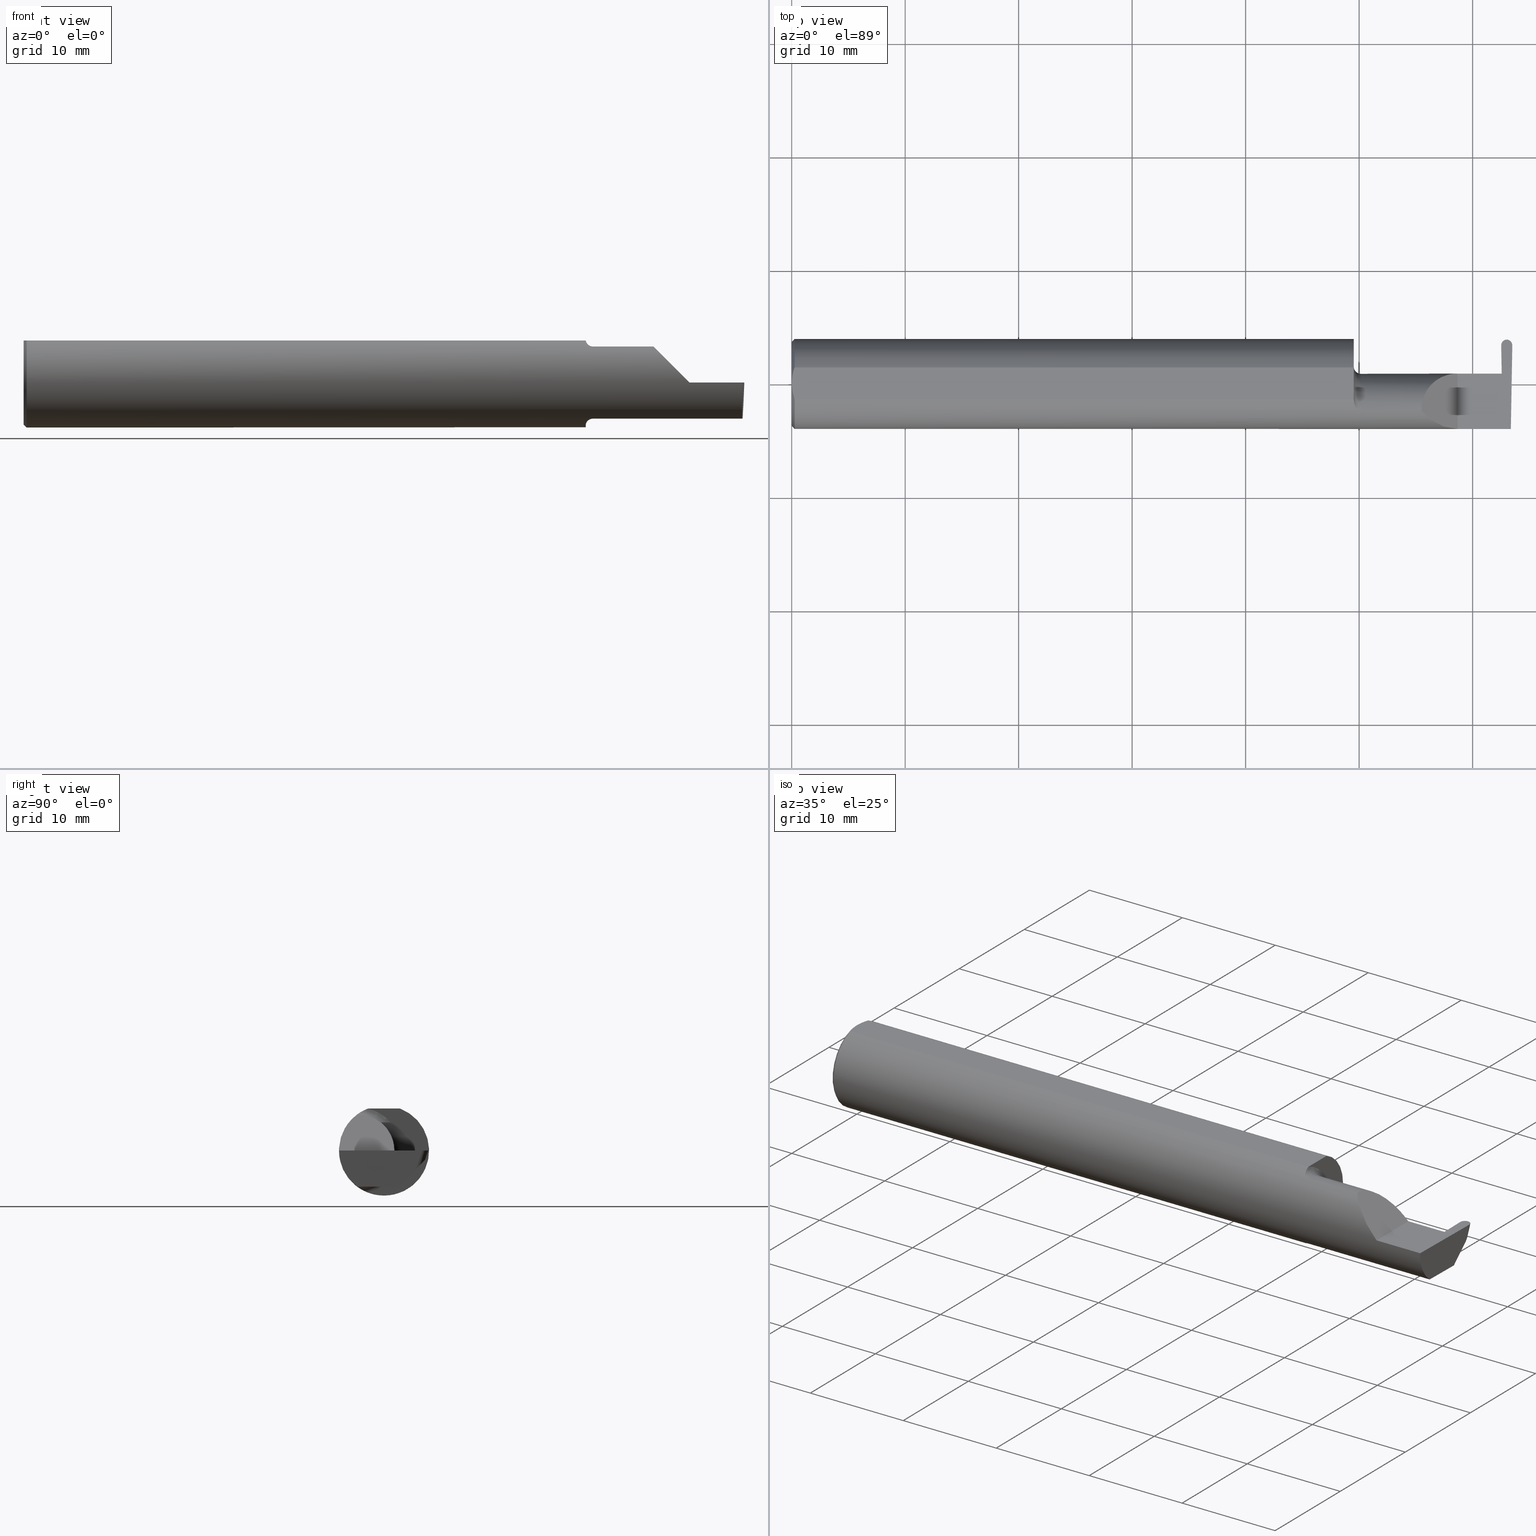
[diagram: canonical four-view strip — front | top / right | iso, engineering-drawing reading convention]
A machine part, canonical four-view strip (front | top / right | iso — engineering-drawing reading convention). The complete STEP part file that produces these views, byte-faithful:
ISO-10303-21;
HEADER;
FILE_DESCRIPTION (( 'STEP AP203' ),
    '1' );
FILE_NAME ('222038-GFR038-8.STEP',
    '2024-06-17T21:58:30',
    ( '' ),
    ( '' ),
    'SwSTEP 2.0',
    'SolidWorks 2022',
    '' );
FILE_SCHEMA (( 'CONFIG_CONTROL_DESIGN' ));
ENDSEC;

DATA;
#1 = DIRECTION ( 'NONE',  ( 0.7071067811865474617, 0.000000000000000000, -0.7071067811865474617 ) ) ;
#2 = CARTESIAN_POINT ( 'NONE',  ( 2.499981158297549744, 0.1333832200032812054, 0.000000000000000000 ) ) ;
#3 = LOCAL_TIME ( 14, 58, 30.00000000000000000, #681 ) ;
#4 = ORIENTED_EDGE ( 'NONE', *, *, #497, .F. ) ;
#5 = CARTESIAN_POINT ( 'NONE',  ( 2.480730819999999781, 0.1431774318487742947, -0.03104841213924604965 ) ) ;
#6 = DIRECTION ( 'NONE',  ( 1.000000000000000000, 3.338285537973413126E-17, 0.000000000000000000 ) ) ;
#7 = EDGE_LOOP ( 'NONE', ( #551, #415, #269, #609, #233, #183, #317, #541, #409, #169, #92, #469, #650 ) ) ;
#8 = DIRECTION ( 'NONE',  ( 0.000000000000000000, -1.000000000000000000, 0.000000000000000000 ) ) ;
#9 = DIRECTION ( 'NONE',  ( 0.000000000000000000, -0.03489949670250104552, -0.9993908270190957621 ) ) ;
#10 = ORIENTED_EDGE ( 'NONE', *, *, #641, .T. ) ;
#11 = LINE ( 'NONE', #383, #592 ) ;
#12 = PLANE ( 'NONE',  #173 ) ;
#13 = EDGE_LOOP ( 'NONE', ( #525, #152, #220, #387, #84, #100 ) ) ;
#14 = EDGE_CURVE ( 'NONE', #554, #55, #150, .T. ) ;
#15 = DIRECTION ( 'NONE',  ( -1.000000000000000000, -0.000000000000000000, -0.000000000000000000 ) ) ;
#16 = EDGE_CURVE ( 'NONE', #434, #116, #212, .T. ) ;
#17 = ORIENTED_EDGE ( 'NONE', *, *, #149, .T. ) ;
#18 = VECTOR ( 'NONE', #250, 39.37007874015748143 ) ;
#19 = CARTESIAN_POINT ( 'NONE',  ( 2.814752029381861309, 0.1560999999999999888, 0.1460999999999998689 ) ) ;
#20 = LENGTH_MEASURE_WITH_UNIT ( LENGTH_MEASURE( 0.02539999999999999897 ), #27 );
#21 = DIRECTION ( 'NONE',  ( -0.03701368837992380367, 0.7066222423871549863, 0.7066222423871629799 ) ) ;
#22 = LOCAL_TIME ( 14, 58, 30.00000000000000000, #32 ) ;
#23 = ADVANCED_FACE ( 'NONE', ( #380 ), #589, .F. ) ;
#24 = DIRECTION ( 'NONE',  ( 1.000000000000000000, 0.000000000000000000, 0.000000000000000000 ) ) ;
#25 = DIRECTION ( 'NONE',  ( -1.000000000000000000, -3.338285537973413126E-17, -0.000000000000000000 ) ) ;
#26 = B_SPLINE_CURVE_WITH_KNOTS ( 'NONE', 3,
 ( #552, #340, #435, #168, #234, #439 ),
 .UNSPECIFIED., .F., .F.,
 ( 4, 2, 4 ),
 ( 0.001497827971916939694, 0.002206109860466201264, 0.002914391749015463051 ),
 .UNSPECIFIED. ) ;
#27 =( LENGTH_UNIT ( ) NAMED_UNIT ( * ) SI_UNIT ( $, .METRE. ) );
#28 = AXIS2_PLACEMENT_3D ( 'NONE', #557, #141, #620 ) ;
#29 = FACE_OUTER_BOUND ( 'NONE', #390, .T. ) ;
#30 = VECTOR ( 'NONE', #376, 39.37007874015747433 ) ;
#31 = ORIENTED_EDGE ( 'NONE', *, *, #318, .T. ) ;
#32 = COORDINATED_UNIVERSAL_TIME_OFFSET ( 8, 0, .BEHIND. ) ;
#33 = DIRECTION ( 'NONE',  ( 0.03867711768363010783, 0.3253245514560481610, 0.9448111011136606230 ) ) ;
#34 = ORIENTED_EDGE ( 'NONE', *, *, #318, .F. ) ;
#35 = PERSON ( 'UNSPECIFIED', 'UNSPECIFIED', 'UNSPECIFIED', ('UNSPECIFIED'), ('UNSPECIFIED'), ('UNSPECIFIED') ) ;
#36 = PERSON_AND_ORGANIZATION_ROLE ( 'classification_officer' ) ;
#37 = DIRECTION ( 'NONE',  ( -1.000000000000000000, -0.000000000000000000, -0.000000000000000000 ) ) ;
#38 = ORIENTED_EDGE ( 'NONE', *, *, #516, .F. ) ;
#39 = APPROVAL_STATUS ( 'not_yet_approved' ) ;
#40 = DIRECTION ( 'NONE',  ( 0.000000000000000000, -0.3255681544571574215, -0.9455185755993165131 ) ) ;
#41 = AXIS2_PLACEMENT_3D ( 'NONE', #562, #195, #354 ) ;
#42 = ORIENTED_EDGE ( 'NONE', *, *, #466, .F. ) ;
#43 = AXIS2_PLACEMENT_3D ( 'NONE', #237, #400, #302 ) ;
#44 = APPROVAL_DATE_TIME ( #89, #438 ) ;
#45 = DIRECTION ( 'NONE',  ( 1.000000000000000000, -0.000000000000000000, -0.000000000000000000 ) ) ;
#46 = ORIENTED_EDGE ( 'NONE', *, *, #72, .T. ) ;
#47 = PRODUCT ( '222038-GFR038-8', '222038-GFR038-8', '', ( #315 ) ) ;
#48 = EDGE_CURVE ( 'NONE', #653, #535, #258, .T. ) ;
#49 = EDGE_CURVE ( 'NONE', #323, #434, #563, .T. ) ;
#50 = DIRECTION ( 'NONE',  ( -1.000000000000000000, -0.000000000000000000, -0.000000000000000000 ) ) ;
#51 = ORIENTED_EDGE ( 'NONE', *, *, #343, .T. ) ;
#52 =( BOUNDED_CURVE ( )  B_SPLINE_CURVE ( 3, ( #372, #584, #316, #361 ),
 .UNSPECIFIED., .F., .F. ) 
 B_SPLINE_CURVE_WITH_KNOTS ( ( 4, 4 ),
 ( 3.176499238629678867, 4.677482395344782162 ),
 .UNSPECIFIED. ) 
 CURVE ( )  GEOMETRIC_REPRESENTATION_ITEM ( )  RATIONAL_B_SPLINE_CURVE ( ( 1.000000000000000000, 0.8209024677461181918, 0.8209024677461181918, 1.000000000000000000 ) ) 
 REPRESENTATION_ITEM ( '' )  );
#53 = LINE ( 'NONE', #686, #30 ) ;
#54 = VERTEX_POINT ( 'NONE', #330 ) ;
#55 = VERTEX_POINT ( 'NONE', #277 ) ;
#56 = EDGE_CURVE ( 'NONE', #126, #514, #498, .T. ) ;
#57 = CARTESIAN_POINT ( 'NONE',  ( 2.461464574789446136, 0.1342945264389270033, 0.000000000000000000 ) ) ;
#58 = FACE_OUTER_BOUND ( 'NONE', #587, .T. ) ;
#59 = ORIENTED_EDGE ( 'NONE', *, *, #199, .F. ) ;
#60 = CARTESIAN_POINT ( 'NONE',  ( 2.480730819999999781, 0.1462124952691014335, -0.02229539791963374221 ) ) ;
#61 = CARTESIAN_POINT ( 'NONE',  ( 2.491731938133923130, -0.08909999999999977660, -0.1250000000000000278 ) ) ;
#62 = ORIENTED_EDGE ( 'NONE', *, *, #202, .T. ) ;
#63 = CARTESIAN_POINT ( 'NONE',  ( 2.455817866257967275, 0.03559550628247789422, -0.008719559218018122643 ) ) ;
#64 = CARTESIAN_POINT ( 'NONE',  ( 2.463182057637018030, 0.03590000000000000135, 0.000000000000000000 ) ) ;
#65 = APPROVAL ( #576, 'UNSPECIFIED' ) ;
#66 = ORIENTED_EDGE ( 'NONE', *, *, #14, .T. ) ;
#67 = AXIS2_PLACEMENT_3D ( 'NONE', #159, #417, #40 ) ;
#68 = CARTESIAN_POINT ( 'NONE',  ( 2.461480481702449818, 0.1333832200032812332, 0.000000000000000000 ) ) ;
#69 = CARTESIAN_POINT ( 'NONE',  ( 2.480730819999999781, 0.1431774318487742947, -0.03104841213924604965 ) ) ;
#70 = EDGE_CURVE ( 'NONE', #175, #699, #392, .T. ) ;
#71 = ORIENTED_EDGE ( 'NONE', *, *, #352, .T. ) ;
#72 = EDGE_CURVE ( 'NONE', #356, #175, #515, .T. ) ;
#73 = CARTESIAN_POINT ( 'NONE',  ( 2.497431183685123735, 0.1119346375676058408, -0.06229120642041485051 ) ) ;
#74 = ORIENTED_EDGE ( 'NONE', *, *, #695, .F. ) ;
#75 = FACE_OUTER_BOUND ( 'NONE', #178, .T. ) ;
#76 = DIRECTION ( 'NONE',  ( 1.000000000000000000, 0.000000000000000000, 0.000000000000000000 ) ) ;
#77 = CARTESIAN_POINT ( 'NONE',  ( -6.265209250606362652E-17, 0.009396510398413125686, 0.1460999999999998689 ) ) ;
#78 = AXIS2_PLACEMENT_3D ( 'NONE', #391, #388, #443 ) ;
#79 = EDGE_CURVE ( 'NONE', #489, #402, #226, .T. ) ;
#80 = PLANE ( 'NONE',  #470 ) ;
#81 = DIRECTION ( 'NONE',  ( 0.000000000000000000, 0.000000000000000000, 1.000000000000000000 ) ) ;
#82 = CARTESIAN_POINT ( 'NONE',  ( 2.477214178502805453, 0.1044344632894257108, -0.08437736749050758767 ) ) ;
#83 = CARTESIAN_POINT ( 'NONE',  ( 1.949999999999999956, -0.05502817059483720852, 0.1460791239054557156 ) ) ;
#84 = ORIENTED_EDGE ( 'NONE', *, *, #695, .T. ) ;
#85 = CYLINDRICAL_SURFACE ( 'NONE', #616, 0.01930000000000000118 ) ;
#86 = VECTOR ( 'NONE', #50, 39.37007874015748143 ) ;
#87 = CARTESIAN_POINT ( 'NONE',  ( 2.456122359975489111, 0.03589999999999995278, 0.000000000000000000 ) ) ;
#88 = ORIENTED_EDGE ( 'NONE', *, *, #149, .F. ) ;
#89 = DATE_AND_TIME ( #214, #22 ) ;
#90 = CARTESIAN_POINT ( 'NONE',  ( 0.000000000000000000, 0.05497272050753933964, 0.1460999999999998689 ) ) ;
#91 = EDGE_CURVE ( 'NONE', #158, #331, #114, .T. ) ;
#92 = ORIENTED_EDGE ( 'NONE', *, *, #321, .F. ) ;
#93 = SHAPE_DEFINITION_REPRESENTATION ( #382, #135 ) ;
#94 = CARTESIAN_POINT ( 'NONE',  ( 2.493178846255211134, -0.1561000000000000165, -0.05008759057876781967 ) ) ;
#95 = CARTESIAN_POINT ( 'NONE',  ( 1.974999999999999867, -0.09360841750841737696, -0.1249186702281520900 ) ) ;
#96 = COORDINATED_UNIVERSAL_TIME_OFFSET ( 8, 0, .BEHIND. ) ;
#97 = CARTESIAN_POINT ( 'NONE',  ( 2.480730819999999781, 0.1431774318487742947, -0.03104841213924604965 ) ) ;
#98 = EDGE_CURVE ( 'NONE', #54, #146, #192, .T. ) ;
#99 = CLOSED_SHELL ( 'NONE', ( #271, #101, #674, #256, #221, #181, #134, #127, #209, #475, #643, #627, #452, #305, #297, #231, #23, #663, #671 ) ) ;
#100 = ORIENTED_EDGE ( 'NONE', *, *, #516, .T. ) ;
#101 = ADVANCED_FACE ( 'NONE', ( #117 ), #12, .F. ) ;
#102 = PERSON_AND_ORGANIZATION_ROLE ( 'design_supplier' ) ;
#103 = CARTESIAN_POINT ( 'NONE',  ( 2.499997065210553426, 0.1342945264389270033, 0.000000000000000000 ) ) ;
#104 = CARTESIAN_POINT ( 'NONE',  ( 2.469175924963806334, 0.1539000000000003143, 1.422725471777793932E-18 ) ) ;
#105 = ORIENTED_EDGE ( 'NONE', *, *, #691, .T. ) ;
#106 = DATE_AND_TIME ( #363, #332 ) ;
#107 = LINE ( 'NONE', #697, #371 ) ;
#108 = LOCAL_TIME ( 14, 58, 30.00000000000000000, #414 ) ;
#109 = VERTEX_POINT ( 'NONE', #337 ) ;
#110 = EDGE_LOOP ( 'NONE', ( #494, #569, #342, #324, #200, #304, #359, #465, #698, #431 ) ) ;
#111 = DIRECTION ( 'NONE',  ( -1.000000000000000000, -3.338285537973413126E-17, -0.000000000000000000 ) ) ;
#112 = CARTESIAN_POINT ( 'NONE',  ( 3.749399456654646757E-32, -0.1560999999999999333, 3.061616997868383634E-16 ) ) ;
#113 = VECTOR ( 'NONE', #180, 39.37007874015748143 ) ;
#114 =( BOUNDED_CURVE ( )  B_SPLINE_CURVE ( 3, ( #386, #652, #597, #280 ),
 .UNSPECIFIED., .F., .F. ) 
 B_SPLINE_CURVE_WITH_KNOTS ( ( 4, 4 ),
 ( 1.677524580234104778, 3.253450286950880344 ),
 .UNSPECIFIED. ) 
 CURVE ( )  GEOMETRIC_REPRESENTATION_ITEM ( )  RATIONAL_B_SPLINE_CURVE ( ( 1.000000000000000000, 0.8035272986452582922, 0.8035272986452582922, 1.000000000000000000 ) ) 
 REPRESENTATION_ITEM ( '' )  );
#115 = TOROIDAL_SURFACE ( 'NONE', #506, 0.1499999999999999944, 0.02499999999999994241 ) ;
#116 = VERTEX_POINT ( 'NONE', #545 ) ;
#117 = FACE_OUTER_BOUND ( 'NONE', #683, .T. ) ;
#118 = ORIENTED_EDGE ( 'NONE', *, *, #567, .F. ) ;
#119 = DIRECTION ( 'NONE',  ( 1.000000000000000000, 0.000000000000000000, -0.000000000000000000 ) ) ;
#120 = CC_DESIGN_PERSON_AND_ORGANIZATION_ASSIGNMENT ( #628, #102, ( #430 ) ) ;
#121 = AXIS2_PLACEMENT_3D ( 'NONE', #617, #142, #353 ) ;
#122 = DIRECTION ( 'NONE',  ( 0.000000000000000000, 0.000000000000000000, 1.000000000000000000 ) ) ;
#123 = DIRECTION ( 'NONE',  ( 0.000000000000000000, 0.000000000000000000, -1.000000000000000000 ) ) ;
#124 = AXIS2_PLACEMENT_3D ( 'NONE', #307, #154, #531 ) ;
#125 = EDGE_CURVE ( 'NONE', #640, #170, #550, .T. ) ;
#126 = VERTEX_POINT ( 'NONE', #393 ) ;
#127 = ADVANCED_FACE ( 'NONE', ( #58 ), #648, .F. ) ;
#128 = CARTESIAN_POINT ( 'NONE',  ( 2.480730819999999337, 0.1522624721910675605, -0.004755726075198207087 ) ) ;
#129 = CARTESIAN_POINT ( 'NONE',  ( 1.956968222952011338, -0.08292257577194368789, 0.1323215906886382742 ) ) ;
#130 = ORIENTED_EDGE ( 'NONE', *, *, #56, .T. ) ;
#131 = CARTESIAN_POINT ( 'NONE',  ( 0.000000000000000000, 0.000000000000000000, 0.000000000000000000 ) ) ;
#132 = LINE ( 'NONE', #558, #649 ) ;
#133 = APPROVAL_PERSON_ORGANIZATION ( #153, #664, #206 ) ;
#134 = ADVANCED_FACE ( 'NONE', ( #553 ), #186, .T. ) ;
#135 = ADVANCED_BREP_SHAPE_REPRESENTATION ( '222038-GFR038-8', ( #540, #121 ), #491 ) ;
#136 = DIRECTION ( 'NONE',  ( -1.000000000000000000, 0.000000000000000000, 1.224646799147353947E-16 ) ) ;
#137 = VECTOR ( 'NONE', #510, 39.37007874015748143 ) ;
#138 =( BOUNDED_CURVE ( )  B_SPLINE_CURVE ( 3, ( #639, #262, #255, #97 ),
 .UNSPECIFIED., .F., .F. ) 
 B_SPLINE_CURVE_WITH_KNOTS ( ( 4, 4 ),
 ( 4.726121454046340986, 6.246271046347061429 ),
 .UNSPECIFIED. ) 
 CURVE ( )  GEOMETRIC_REPRESENTATION_ITEM ( )  RATIONAL_B_SPLINE_CURVE ( ( 1.000000000000000000, 0.8165229866942824710, 0.8165229866942824710, 1.000000000000000000 ) ) 
 REPRESENTATION_ITEM ( '' )  );
#139 = DIRECTION ( 'NONE',  ( 0.000000000000000000, 0.9455185755993165131, -0.3255681544571574215 ) ) ;
#140 = VECTOR ( 'NONE', #603, 39.37007874015748143 ) ;
#141 = DIRECTION ( 'NONE',  ( -0.7071067811865436870, 0.000000000000000000, -0.7071067811865513475 ) ) ;
#142 = DIRECTION ( 'NONE',  ( 0.000000000000000000, 0.000000000000000000, 1.000000000000000000 ) ) ;
#143 = CARTESIAN_POINT ( 'NONE',  ( 1.949999999999999956, -0.08910000000000002640, 0.000000000000000000 ) ) ;
#144 = ORIENTED_EDGE ( 'NONE', *, *, #270, .T. ) ;
#145 = DIRECTION ( 'NONE',  ( -1.000000000000000000, -3.338285537973413126E-17, -0.000000000000000000 ) ) ;
#146 = VERTEX_POINT ( 'NONE', #73 ) ;
#147 = EDGE_CURVE ( 'NONE', #485, #585, #260, .T. ) ;
#148 = PRODUCT_RELATED_PRODUCT_CATEGORY ( 'detail', '', ( #47 ) ) ;
#149 = EDGE_CURVE ( 'NONE', #621, #653, #484, .T. ) ;
#150 = B_SPLINE_CURVE_WITH_KNOTS ( 'NONE', 3,
 ( #95, #575, #311, #479, #687, #473, #477, #210, #690, #369 ),
 .UNSPECIFIED., .F., .F.,
 ( 4, 2, 2, 2, 4 ),
 ( 1.958690481381664333E-07, 0.0003511029445248158368, 0.0007020100200014934991, 0.001052917095478171161, 0.001403824170954848715 ),
 .UNSPECIFIED. ) ;
#151 = CARTESIAN_POINT ( 'NONE',  ( 2.491656083944432165, -0.09360841750841739084, -0.1249186702281520622 ) ) ;
#152 = ORIENTED_EDGE ( 'NONE', *, *, #464, .T. ) ;
#153 = PERSON_AND_ORGANIZATION ( #35, #534 ) ;
#154 = DIRECTION ( 'NONE',  ( 0.000000000000000000, -0.7071067811865515695, 0.7071067811865434649 ) ) ;
#155 = ORIENTED_EDGE ( 'NONE', *, *, #504, .F. ) ;
#156 = COORDINATED_UNIVERSAL_TIME_OFFSET ( 8, 0, .BEHIND. ) ;
#157 = CARTESIAN_POINT ( 'NONE',  ( 2.491656083944432165, -0.09360841750841739084, -0.1249186702281520622 ) ) ;
#158 = VERTEX_POINT ( 'NONE', #2 ) ;
#159 = CARTESIAN_POINT ( 'NONE',  ( -3.937007874019685528E-05, 0.1539000000000000090, 0.000000000000000000 ) ) ;
#160 = AXIS2_PLACEMENT_3D ( 'NONE', #286, #15, #447 ) ;
#161 = VERTEX_POINT ( 'NONE', #346 ) ;
#162 = CIRCLE ( 'NONE', #424, 0.1560999999999999888 ) ;
#163 = EDGE_LOOP ( 'NONE', ( #42, #62, #644, #421, #251, #595 ) ) ;
#164 = APPROVAL_ROLE ( '' ) ;
#165 = CARTESIAN_POINT ( 'NONE',  ( 2.491731938133923130, -0.08909999999999977660, -0.1250000000000000278 ) ) ;
#166 = ORIENTED_EDGE ( 'NONE', *, *, #555, .T. ) ;
#167 = EDGE_LOOP ( 'NONE', ( #591, #17, #399 ) ) ;
#168 = CARTESIAN_POINT ( 'NONE',  ( 0.0009113193687670144904, -0.01867274705588957071, 0.1460999999999998411 ) ) ;
#169 = ORIENTED_EDGE ( 'NONE', *, *, #693, .T. ) ;
#170 = VERTEX_POINT ( 'NONE', #87 ) ;
#171 = CARTESIAN_POINT ( 'NONE',  ( 2.310000000000000053, -0.1560999999999999888, 2.326828918379970872E-17 ) ) ;
#172 = CARTESIAN_POINT ( 'NONE',  ( 2.491680411974855680, -0.09210618219364760662, -0.1249728871357008442 ) ) ;
#173 = AXIS2_PLACEMENT_3D ( 'NONE', #64, #659, #9 ) ;
#174 = CIRCLE ( 'NONE', #281, 0.1250000000000000833 ) ;
#175 = VERTEX_POINT ( 'NONE', #83 ) ;
#176 = CARTESIAN_POINT ( 'NONE',  ( 1.974999999999999867, -0.09360841750841737696, -0.1249186702281520900 ) ) ;
#177 = CARTESIAN_POINT ( 'NONE',  ( 2.461480481702449818, 0.1333832200032812332, 0.000000000000000000 ) ) ;
#178 = EDGE_LOOP ( 'NONE', ( #418, #273, #46, #678 ) ) ;
#179 = DIRECTION ( 'NONE',  ( -0.01745240643727553193, 0.9998476951563912696, -0.000000000000000000 ) ) ;
#180 = DIRECTION ( 'NONE',  ( 1.000000000000000000, 3.338285537973413126E-17, 0.000000000000000000 ) ) ;
#181 = ADVANCED_FACE ( 'NONE', ( #29 ), #80, .T. ) ;
#182 = EDGE_CURVE ( 'NONE', #514, #602, #296, .T. ) ;
#183 = ORIENTED_EDGE ( 'NONE', *, *, #70, .F. ) ;
#184 = CARTESIAN_POINT ( 'NONE',  ( 1.949999999999999956, 0.000000000000000000, 0.000000000000000000 ) ) ;
#185 = CARTESIAN_POINT ( 'NONE',  ( 2.491656083944432165, -0.09360841750841739084, -0.1249186702281520622 ) ) ;
#186 = CONICAL_SURFACE ( 'NONE', #301, 0.1460999999999998411, 0.7853981633974482790 ) ;
#187 = VERTEX_POINT ( 'NONE', #288 ) ;
#188 = CARTESIAN_POINT ( 'NONE',  ( 0.006876379561362894709, 0.04610291843171884091, 0.1460999999999998689 ) ) ;
#189 = CARTESIAN_POINT ( 'NONE',  ( 2.498348488981012139, 0.1294467622302619136, -0.04477908175775856953 ) ) ;
#190 = EDGE_CURVE ( 'NONE', #161, #434, #505, .T. ) ;
#191 = ORIENTED_EDGE ( 'NONE', *, *, #98, .F. ) ;
#192 =( BOUNDED_CURVE ( )  B_SPLINE_CURVE ( 3, ( #69, #341, #189, #539 ),
 .UNSPECIFIED., .F., .F. ) 
 B_SPLINE_CURVE_WITH_KNOTS ( ( 4, 4 ),
 ( 3.178506914422260632, 4.698656506723038362 ),
 .UNSPECIFIED. ) 
 CURVE ( )  GEOMETRIC_REPRESENTATION_ITEM ( )  RATIONAL_B_SPLINE_CURVE ( ( 1.000000000000000000, 0.8165229866942693704, 0.8165229866942693704, 1.000000000000000000 ) ) 
 REPRESENTATION_ITEM ( '' )  );
#193 = CYLINDRICAL_SURFACE ( 'NONE', #471, 0.1560999999999999888 ) ;
#194 = DIRECTION ( 'NONE',  ( -1.000000000000000000, -0.000000000000000000, -0.000000000000000000 ) ) ;
#195 = DIRECTION ( 'NONE',  ( -0.9992386149554827179, 0.01744177490282277851, 0.03489949670250104552 ) ) ;
#196 = CIRCLE ( 'NONE', #675, 0.1560999999999999888 ) ;
#197 = FACE_OUTER_BOUND ( 'NONE', #13, .T. ) ;
#198 = PLANE ( 'NONE',  #41 ) ;
#199 = EDGE_CURVE ( 'NONE', #175, #55, #312, .T. ) ;
#200 = ORIENTED_EDGE ( 'NONE', *, *, #125, .T. ) ;
#201 = EDGE_CURVE ( 'NONE', #240, #287, #508, .T. ) ;
#202 = EDGE_CURVE ( 'NONE', #146, #158, #406, .T. ) ;
#203 = CC_DESIGN_SECURITY_CLASSIFICATION ( #366, ( #430 ) ) ;
#204 = CARTESIAN_POINT ( 'NONE',  ( 1.974999999999999867, -0.08910000000000002640, 0.000000000000000000 ) ) ;
#205 = VERTEX_POINT ( 'NONE', #294 ) ;
#206 = APPROVAL_ROLE ( '' ) ;
#207 = FACE_OUTER_BOUND ( 'NONE', #566, .T. ) ;
#208 = ORIENTED_EDGE ( 'NONE', *, *, #666, .F. ) ;
#209 = ADVANCED_FACE ( 'NONE', ( #244 ), #115, .F. ) ;
#210 = CARTESIAN_POINT ( 'NONE',  ( 1.950382848617946419, -0.06353102748571687330, -0.1426585117573466732 ) ) ;
#211 = CARTESIAN_POINT ( 'NONE',  ( 2.480925502065933319, 0.1539000000000000090, 0.000000000000000000 ) ) ;
#212 = LINE ( 'NONE', #633, #626 ) ;
#213 = ORIENTED_EDGE ( 'NONE', *, *, #555, .F. ) ;
#214 = CALENDAR_DATE ( 2024, 17, 6 ) ;
#215 = CARTESIAN_POINT ( 'NONE',  ( 0.01000000000000013205, 0.000000000000000000, -0.1560999999999999888 ) ) ;
#216 = VECTOR ( 'NONE', #577, 39.37007874015748143 ) ;
#217 = CARTESIAN_POINT ( 'NONE',  ( 2.468985697877362551, -2.435358991439782628, -0.07721978725935170484 ) ) ;
#218 = APPLICATION_CONTEXT ( 'configuration controlled 3d designs of mechanical parts and assemblies' ) ;
#219 = CARTESIAN_POINT ( 'NONE',  ( 2.455919364163807739, 0.03569700418831857347, -0.005813039478678751031 ) ) ;
#220 = ORIENTED_EDGE ( 'NONE', *, *, #182, .F. ) ;
#221 = ADVANCED_FACE ( 'NONE', ( #358 ), #303, .F. ) ;
#222 = DIRECTION ( 'NONE',  ( 0.000000000000000000, 1.000000000000000000, 0.000000000000000000 ) ) ;
#223 = CARTESIAN_POINT ( 'NONE',  ( 1.965961110143898516, -0.09166971356555039807, 0.1263901893006928734 ) ) ;
#224 = ORIENTED_EDGE ( 'NONE', *, *, #547, .F. ) ;
#225 = CARTESIAN_POINT ( 'NONE',  ( 2.215117332916549220, -0.1336908980339253650, 0.09488266708345012568 ) ) ;
#226 = LINE ( 'NONE', #112, #526 ) ;
#227 = AXIS2_PLACEMENT_3D ( 'NONE', #246, #76, #457 ) ;
#228 = VECTOR ( 'NONE', #564, 39.37007874015748143 ) ;
#229 = EDGE_CURVE ( 'NONE', #331, #621, #132, .T. ) ;
#230 = LINE ( 'NONE', #556, #228 ) ;
#231 = ADVANCED_FACE ( 'NONE', ( #670 ), #198, .F. ) ;
#232 = CARTESIAN_POINT ( 'NONE',  ( 1.949999999999999956, 0.03590000000000000135, 6.735557395310446214E-17 ) ) ;
#233 = ORIENTED_EDGE ( 'NONE', *, *, #642, .F. ) ;
#234 = CARTESIAN_POINT ( 'NONE',  ( -6.292721147515215909E-17, -0.009387766318748835132, 0.1460999999999998689 ) ) ;
#235 = CARTESIAN_POINT ( 'NONE',  ( 0.000000000000000000, 0.000000000000000000, 0.000000000000000000 ) ) ;
#236 = ORIENTED_EDGE ( 'NONE', *, *, #547, .T. ) ;
#237 = CARTESIAN_POINT ( 'NONE',  ( 1.949999999999999956, 0.1560999999999999055, 0.000000000000000000 ) ) ;
#238 = DIRECTION ( 'NONE',  ( 0.000000000000000000, 0.000000000000000000, -1.000000000000000000 ) ) ;
#239 = DIMENSIONAL_EXPONENTS ( 1.000000000000000000, 0.000000000000000000, 0.000000000000000000, 0.000000000000000000, 0.000000000000000000, 0.000000000000000000, 0.000000000000000000 ) ;
#240 = VERTEX_POINT ( 'NONE', #615 ) ;
#241 =( NAMED_UNIT ( * ) SI_UNIT ( $, .STERADIAN. ) SOLID_ANGLE_UNIT ( ) );
#242 = CARTESIAN_POINT ( 'NONE',  ( 2.459017824355290038, 0.2076299705802605033, 0.03340412659224087366 ) ) ;
#243 = FACE_OUTER_BOUND ( 'NONE', #378, .T. ) ;
#244 = FACE_OUTER_BOUND ( 'NONE', #462, .T. ) ;
#245 = CARTESIAN_POINT ( 'NONE',  ( 2.476825396828310044, 0.1668636204730998551, 0.09693006988645212763 ) ) ;
#246 = CARTESIAN_POINT ( 'NONE',  ( 0.000000000000000000, 0.000000000000000000, 0.000000000000000000 ) ) ;
#247 = VECTOR ( 'NONE', #21, 39.37007874015748854 ) ;
#248 = CARTESIAN_POINT ( 'NONE',  ( -3.937007874019685528E-05, 0.04922584398802136441, -0.1250000000000000278 ) ) ;
#249 = VECTOR ( 'NONE', #45, 39.37007874015748143 ) ;
#250 = DIRECTION ( 'NONE',  ( -0.01745240643727612520, -0.9998476951563912696, 0.000000000000000000 ) ) ;
#251 = ORIENTED_EDGE ( 'NONE', *, *, #49, .T. ) ;
#252 = FACE_OUTER_BOUND ( 'NONE', #665, .T. ) ;
#253 = VERTEX_POINT ( 'NONE', #568 ) ;
#254 = PERSON_AND_ORGANIZATION_ROLE ( 'creator' ) ;
#255 = CARTESIAN_POINT ( 'NONE',  ( 2.469930825457742785, 0.1422011671032358537, -0.03202467688478448371 ) ) ;
#256 = ADVANCED_FACE ( 'NONE', ( #299 ), #408, .F. ) ;
#257 = EDGE_LOOP ( 'NONE', ( #582, #482, #130, #480, #268 ) ) ;
#258 =( BOUNDED_CURVE ( )  B_SPLINE_CURVE ( 3, ( #373, #104, #522, #177 ),
 .UNSPECIFIED., .F., .F. ) 
 B_SPLINE_CURVE_WITH_KNOTS ( ( 4, 4 ),
 ( 6.171327673818470139, 7.747253380535275014 ),
 .UNSPECIFIED. ) 
 CURVE ( )  GEOMETRIC_REPRESENTATION_ITEM ( )  RATIONAL_B_SPLINE_CURVE ( ( 1.000000000000000000, 0.8035272986452512978, 0.8035272986452512978, 1.000000000000000000 ) ) 
 REPRESENTATION_ITEM ( '' )  );
#259 = DATE_AND_TIME ( #306, #454 ) ;
#260 = CIRCLE ( 'NONE', #160, 0.1460999999999998411 ) ;
#261 = VECTOR ( 'NONE', #446, 39.37007874015748143 ) ;
#262 = CARTESIAN_POINT ( 'NONE',  ( 2.463113151018988756, 0.1294467622302611365, -0.04477908175775938138 ) ) ;
#263 = ORIENTED_EDGE ( 'NONE', *, *, #202, .F. ) ;
#264 = PLANE ( 'NONE',  #124 ) ;
#265 = ORIENTED_EDGE ( 'NONE', *, *, #48, .T. ) ;
#266 = DATE_AND_TIME ( #467, #108 ) ;
#267 = DIRECTION ( 'NONE',  ( 0.03490480639812536257, 0.000000000000000000, -0.9993906415863165194 ) ) ;
#268 = ORIENTED_EDGE ( 'NONE', *, *, #190, .T. ) ;
#269 = ORIENTED_EDGE ( 'NONE', *, *, #79, .T. ) ;
#270 = EDGE_CURVE ( 'NONE', #356, #109, #351, .T. ) ;
#271 = ADVANCED_FACE ( 'NONE', ( #252 ), #423, .T. ) ;
#272 = ORIENTED_EDGE ( 'NONE', *, *, #125, .F. ) ;
#273 = ORIENTED_EDGE ( 'NONE', *, *, #270, .F. ) ;
#274 = CARTESIAN_POINT ( 'NONE',  ( 2.464030456314875384, 0.1119346375676058686, -0.06229120642041481581 ) ) ;
#275 = DIRECTION ( 'NONE',  ( -0.03867711768362992047, 0.3253245514560482166, 0.9448111011136606230 ) ) ;
#276 = CARTESIAN_POINT ( 'NONE',  ( 2.218230820000000048, -0.09360841750841740472, -0.1249186702281520622 ) ) ;
#277 = CARTESIAN_POINT ( 'NONE',  ( 1.949999999999999956, -0.05502817059483720852, -0.1460791239054557156 ) ) ;
#278 = EDGE_CURVE ( 'NONE', #116, #126, #677, .T. ) ;
#279 = CARTESIAN_POINT ( 'NONE',  ( 2.310000000000000053, -0.2500000000000000555, 2.326828918379970872E-17 ) ) ;
#280 = CARTESIAN_POINT ( 'NONE',  ( 2.480925502065933319, 0.1539000000000000090, 0.000000000000000000 ) ) ;
#281 = AXIS2_PLACEMENT_3D ( 'NONE', #468, #476, #322 ) ;
#282 = DIRECTION ( 'NONE',  ( 1.000000000000000000, 0.000000000000000000, 0.000000000000000000 ) ) ;
#283 = CARTESIAN_POINT ( 'NONE',  ( 1.949999999999999956, -0.05502817059483720852, 0.1460791239054557156 ) ) ;
#284 = ORIENTED_EDGE ( 'NONE', *, *, #343, .F. ) ;
#285 = CARTESIAN_POINT ( 'NONE',  ( 2.463182057637018030, 0.03590000000000000135, 0.000000000000000000 ) ) ;
#286 = CARTESIAN_POINT ( 'NONE',  ( 0.000000000000000000, 0.000000000000000000, 0.000000000000000000 ) ) ;
#287 = VERTEX_POINT ( 'NONE', #463 ) ;
#288 = CARTESIAN_POINT ( 'NONE',  ( 0.01000000000000013205, 0.05497272050753933964, 0.1460999999999998689 ) ) ;
#289 = CC_DESIGN_PERSON_AND_ORGANIZATION_ASSIGNMENT ( #583, #36, ( #366 ) ) ;
#290 = AXIS2_PLACEMENT_3D ( 'NONE', #405, #455, #136 ) ;
#291 = VECTOR ( 'NONE', #111, 39.37007874015748143 ) ;
#292 = APPLICATION_PROTOCOL_DEFINITION ( 'international standard', 'config_control_design', 1994, #218 ) ;
#293 = CC_DESIGN_DATE_AND_TIME_ASSIGNMENT ( #523, #685, ( #511 ) ) ;
#294 = CARTESIAN_POINT ( 'NONE',  ( 2.185081329771846992, -0.09360841750841744635, 0.1249186702281520622 ) ) ;
#295 = LINE ( 'NONE', #248, #684 ) ;
#296 = LINE ( 'NONE', #242, #247 ) ;
#297 = ADVANCED_FACE ( 'NONE', ( #197 ), #565, .F. ) ;
#298 = CARTESIAN_POINT ( 'NONE',  ( 2.480536137934067575, 0.1539000000000000090, 0.000000000000000000 ) ) ;
#299 = FACE_OUTER_BOUND ( 'NONE', #606, .T. ) ;
#300 = EDGE_LOOP ( 'NONE', ( #630, #265, #4, #34, #272, #546, #499, #362, #427 ) ) ;
#301 = AXIS2_PLACEMENT_3D ( 'NONE', #444, #662, #238 ) ;
#302 = DIRECTION ( 'NONE',  ( -3.338285537973413126E-17, 1.000000000000000000, 0.000000000000000000 ) ) ;
#303 = PLANE ( 'NONE',  #290 ) ;
#304 = ORIENTED_EDGE ( 'NONE', *, *, #598, .F. ) ;
#305 = ADVANCED_FACE ( 'NONE', ( #207 ), #264, .F. ) ;
#306 = CALENDAR_DATE ( 2024, 17, 6 ) ;
#307 = CARTESIAN_POINT ( 'NONE',  ( -3.937007874019685528E-05, 0.1432258439880203515, -0.03099999999999999978 ) ) ;
#308 = APPROVAL_PERSON_ORGANIZATION ( #530, #65, #638 ) ;
#309 = APPROVAL_DATE_TIME ( #266, #65 ) ;
#310 = CARTESIAN_POINT ( 'NONE',  ( -3.937007874019685528E-05, 0.1539000000000000090, 0.000000000000000000 ) ) ;
#311 = CARTESIAN_POINT ( 'NONE',  ( 1.965963332554100829, -0.09167217634395835590, -0.1263885352504912074 ) ) ;
#312 = CIRCLE ( 'NONE', #413, 0.1500000000000000222 ) ;
#313 = CARTESIAN_POINT ( 'NONE',  ( 2.310000000000000053, -0.1560999999999999888, 2.326828918379970872E-17 ) ) ;
#314 = ORIENTED_EDGE ( 'NONE', *, *, #691, .F. ) ;
#315 = MECHANICAL_CONTEXT ( 'NONE', #218, 'mechanical' ) ;
#316 = CARTESIAN_POINT ( 'NONE',  ( 2.465949139812158020, 0.03076608555686792534, -0.07778349322819352873 ) ) ;
#317 = ORIENTED_EDGE ( 'NONE', *, *, #72, .F. ) ;
#318 = EDGE_CURVE ( 'NONE', #170, #571, #573, .T. ) ;
#319 = EDGE_CURVE ( 'NONE', #158, #489, #478, .T. ) ;
#320 = ORIENTED_EDGE ( 'NONE', *, *, #48, .F. ) ;
#321 = EDGE_CURVE ( 'NONE', #109, #187, #528, .T. ) ;
#322 = DIRECTION ( 'NONE',  ( 0.000000000000000000, -1.000000000000000000, 0.000000000000000000 ) ) ;
#323 = VERTEX_POINT ( 'NONE', #151 ) ;
#324 = ORIENTED_EDGE ( 'NONE', *, *, #420, .T. ) ;
#325 = CARTESIAN_POINT ( 'NONE',  ( 2.259912409421231949, -0.1560999999999999333, 0.05008759057876778498 ) ) ;
#326 = AXIS2_PLACEMENT_3D ( 'NONE', #440, #6, #334 ) ;
#327 = CARTESIAN_POINT ( 'NONE',  ( 1.952022937423427251, -0.07166099912599845079, 0.1387519908707177951 ) ) ;
#328 = ORIENTED_EDGE ( 'NONE', *, *, #345, .T. ) ;
#329 = DIRECTION ( 'NONE',  ( -0.03549161113179506721, 0.03487750912278139021, 0.9987611851171729338 ) ) ;
#330 = CARTESIAN_POINT ( 'NONE',  ( 2.480730819999999781, 0.1431774318487742947, -0.03104841213924604965 ) ) ;
#331 = VERTEX_POINT ( 'NONE', #211 ) ;
#332 = LOCAL_TIME ( 14, 58, 30.00000000000000000, #96 ) ;
#333 = CARTESIAN_POINT ( 'NONE',  ( 0.000000000000000000, -0.05497272050753933964, 0.1460999999999998689 ) ) ;
#334 = DIRECTION ( 'NONE',  ( 0.000000000000000000, 1.000000000000000000, 0.000000000000000000 ) ) ;
#335 = VERTEX_POINT ( 'NONE', #215 ) ;
#336 = LINE ( 'NONE', #57, #559 ) ;
#337 = CARTESIAN_POINT ( 'NONE',  ( 1.949999999999999956, 0.05497272050753933964, 0.1460999999999998689 ) ) ;
#338 = VECTOR ( 'NONE', #513, 39.37007874015748143 ) ;
#339 = ORIENTED_EDGE ( 'NONE', *, *, #70, .T. ) ;
#340 = CARTESIAN_POINT ( 'NONE',  ( 0.006903212852521220001, -0.04617911398309930415, 0.1460999999999998689 ) ) ;
#341 = CARTESIAN_POINT ( 'NONE',  ( 2.491530814542256334, 0.1422011671032368807, -0.03202467688478343594 ) ) ;
#342 = ORIENTED_EDGE ( 'NONE', *, *, #642, .T. ) ;
#343 = EDGE_CURVE ( 'NONE', #585, #485, #637, .T. ) ;
#344 = DIRECTION ( 'NONE',  ( -0.03867711768363010783, -0.3253245514560481610, -0.9448111011136605120 ) ) ;
#345 = EDGE_CURVE ( 'NONE', #602, #54, #138, .T. ) ;
#346 = CARTESIAN_POINT ( 'NONE',  ( 2.494146424721983557, 0.04922584398802135747, -0.1250000000000000278 ) ) ;
#347 = CC_DESIGN_PERSON_AND_ORGANIZATION_ASSIGNMENT ( #375, #410, ( #511 ) ) ;
#348 = DIRECTION ( 'NONE',  ( -0.03867711768363010089, -0.3253245514560481610, -0.9448111011136605120 ) ) ;
#349 = VECTOR ( 'NONE', #1, 39.37007874015748854 ) ;
#350 = DIRECTION ( 'NONE',  ( -0.03867711768362992047, 0.3253245514560481610, 0.9448111011136606230 ) ) ;
#351 = LINE ( 'NONE', #461, #137 ) ;
#352 = EDGE_CURVE ( 'NONE', #699, #554, #174, .T. ) ;
#353 = DIRECTION ( 'NONE',  ( 1.000000000000000000, 0.000000000000000000, 0.000000000000000000 ) ) ;
#354 = DIRECTION ( 'NONE',  ( 0.03490480639812536257, 0.000000000000000000, 0.9993906415863165194 ) ) ;
#355 = CC_DESIGN_APPROVAL ( #65, ( #511 ) ) ;
#356 = VERTEX_POINT ( 'NONE', #682 ) ;
#357 = CARTESIAN_POINT ( 'NONE',  ( 0.01000000000000013205, 0.000000000000000000, 0.000000000000000000 ) ) ;
#358 = FACE_OUTER_BOUND ( 'NONE', #300, .T. ) ;
#359 = ORIENTED_EDGE ( 'NONE', *, *, #201, .F. ) ;
#360 = PERSON_AND_ORGANIZATION ( #35, #534 ) ;
#361 = CARTESIAN_POINT ( 'NONE',  ( 2.463491912695082053, 0.03559550628246012371, -0.008719559218016929153 ) ) ;
#362 = ORIENTED_EDGE ( 'NONE', *, *, #319, .F. ) ;
#363 = CALENDAR_DATE ( 2024, 17, 6 ) ;
#364 = CARTESIAN_POINT ( 'NONE',  ( 2.492005481760536156, -0.1336908980339253650, -0.09488266708345013956 ) ) ;
#365 = ORIENTED_EDGE ( 'NONE', *, *, #464, .F. ) ;
#366 = SECURITY_CLASSIFICATION ( '', '', #688 ) ;
#367 = PERSON_AND_ORGANIZATION ( #35, #534 ) ;
#368 = CARTESIAN_POINT ( 'NONE',  ( 2.494928209896765114, -0.1560999999999999888, 0.000000000000000000 ) ) ;
#369 = CARTESIAN_POINT ( 'NONE',  ( 1.949999999999999956, -0.05502817059483720852, -0.1460791239054557156 ) ) ;
#370 = APPROVAL_STATUS ( 'not_yet_approved' ) ;
#371 = VECTOR ( 'NONE', #411, 39.37007874015748854 ) ;
#372 = CARTESIAN_POINT ( 'NONE',  ( 2.467773529127905707, -0.08910000000000001252, -0.1250000000000000278 ) ) ;
#373 = CARTESIAN_POINT ( 'NONE',  ( 2.480536137934067575, 0.1539000000000000090, 0.000000000000000000 ) ) ;
#374 = EDGE_CURVE ( 'NONE', #323, #489, #612, .T. ) ;
#375 = PERSON_AND_ORGANIZATION ( #35, #534 ) ;
#376 = DIRECTION ( 'NONE',  ( 0.03867711768362992741, -0.3253245514560482166, -0.9448111011136606230 ) ) ;
#377 = ORIENTED_EDGE ( 'NONE', *, *, #693, .F. ) ;
#378 = EDGE_LOOP ( 'NONE', ( #263, #191, #224, #449, #532 ) ) ;
#379 = DIRECTION ( 'NONE',  ( -1.000000000000000000, -3.338285537973413126E-17, -0.000000000000000000 ) ) ;
#380 = FACE_OUTER_BOUND ( 'NONE', #660, .T. ) ;
#381 = ORIENTED_EDGE ( 'NONE', *, *, #598, .T. ) ;
#382 = PRODUCT_DEFINITION_SHAPE ( 'NONE', 'NONE',  #511 ) ;
#383 = CARTESIAN_POINT ( 'NONE',  ( 2.463182057637018030, 0.03590000000000000135, 0.000000000000000000 ) ) ;
#384 = VECTOR ( 'NONE', #673, 39.37007874015748854 ) ;
#385 = CIRCLE ( 'NONE', #78, 0.1560999999999999888 ) ;
#386 = CARTESIAN_POINT ( 'NONE',  ( 2.499981158297549744, 0.1333832200032812054, 0.000000000000000000 ) ) ;
#387 = ORIENTED_EDGE ( 'NONE', *, *, #56, .F. ) ;
#388 = DIRECTION ( 'NONE',  ( 1.000000000000000000, 0.000000000000000000, 0.000000000000000000 ) ) ;
#389 = CARTESIAN_POINT ( 'NONE',  ( 2.469796698367044741, -0.09293822696986767107, -0.1250000000000000278 ) ) ;
#390 = EDGE_LOOP ( 'NONE', ( #581, #144, #518, #314, #213 ) ) ;
#391 = CARTESIAN_POINT ( 'NONE',  ( 0.01000000000000013205, 0.000000000000000000, 0.000000000000000000 ) ) ;
#392 = B_SPLINE_CURVE_WITH_KNOTS ( 'NONE', 3,
 ( #283, #501, #605, #327, #487, #129, #396, #223, #492, #656 ),
 .UNSPECIFIED., .F., .F.,
 ( 4, 2, 2, 2, 4 ),
 ( 2.042507625474130879E-06, 0.0003500235523914536299, 0.0006980045971574332098, 0.001045985641923413223, 0.001393966686689393454 ),
 .UNSPECIFIED. ) ;
#393 = CARTESIAN_POINT ( 'NONE',  ( 2.467624011787402871, 0.03153490381351367611, -0.1249999999999993894 ) ) ;
#394 = ORIENTED_EDGE ( 'NONE', *, *, #201, .T. ) ;
#395 = CARTESIAN_POINT ( 'NONE',  ( 2.310000000000000053, 0.03590000000000001523, 6.735557395310446214E-17 ) ) ;
#396 = CARTESIAN_POINT ( 'NONE',  ( 1.959397142708819928, -0.08631844651567573135, 0.1301035823018546200 ) ) ;
#397 = VECTOR ( 'NONE', #692, 39.37007874015748143 ) ;
#398 = EDGE_CURVE ( 'NONE', #653, #331, #425, .T. ) ;
#399 = ORIENTED_EDGE ( 'NONE', *, *, #398, .T. ) ;
#400 = DIRECTION ( 'NONE',  ( 1.000000000000000000, 3.338285537973413126E-17, 0.000000000000000000 ) ) ;
#401 = CARTESIAN_POINT ( 'NONE',  ( 2.476825396828309600, 0.1851121289821666682, 0.09064660450542896819 ) ) ;
#402 = VERTEX_POINT ( 'NONE', #313 ) ;
#403 = DIRECTION ( 'NONE',  ( 1.000000000000000000, 0.000000000000000000, -0.000000000000000000 ) ) ;
#404 = DIRECTION ( 'NONE',  ( 1.000000000000000000, -0.000000000000000000, -0.000000000000000000 ) ) ;
#405 = CARTESIAN_POINT ( 'NONE',  ( 2.500000000000000000, -0.2500000000000000555, 0.000000000000000000 ) ) ;
#406 = LINE ( 'NONE', #679, #590 ) ;
#407 = CARTESIAN_POINT ( 'NONE',  ( 0.004370115738487063105, 0.03710696786819756010, 0.1460999999999998411 ) ) ;
#408 = PLANE ( 'NONE',  #28 ) ;
#409 = ORIENTED_EDGE ( 'NONE', *, *, #567, .T. ) ;
#410 = PERSON_AND_ORGANIZATION_ROLE ( 'creator' ) ;
#411 = DIRECTION ( 'NONE',  ( -0.03701368837992422695, -0.7066222423871549863, -0.7066222423871629799 ) ) ;
#412 = ORIENTED_EDGE ( 'NONE', *, *, #496, .T. ) ;
#413 = AXIS2_PLACEMENT_3D ( 'NONE', #143, #145, #668 ) ;
#414 = COORDINATED_UNIVERSAL_TIME_OFFSET ( 8, 0, .BEHIND. ) ;
#415 = ORIENTED_EDGE ( 'NONE', *, *, #374, .T. ) ;
#416 = PERSON_AND_ORGANIZATION ( #35, #534 ) ;
#417 = DIRECTION ( 'NONE',  ( 0.000000000000000000, -0.9455185755993165131, 0.3255681544571574215 ) ) ;
#418 = ORIENTED_EDGE ( 'NONE', *, *, #619, .T. ) ;
#419 = CARTESIAN_POINT ( 'NONE',  ( 2.185081329771846992, -0.09360841750841744635, 0.1249186702281520622 ) ) ;
#420 = EDGE_CURVE ( 'NONE', #205, #640, #533, .T. ) ;
#421 = ORIENTED_EDGE ( 'NONE', *, *, #374, .F. ) ;
#422 = PERSON_AND_ORGANIZATION_ROLE ( 'design_owner' ) ;
#423 = CONICAL_SURFACE ( 'NONE', #227, 0.1460999999999998411, 0.7853981633974482790 ) ;
#424 = AXIS2_PLACEMENT_3D ( 'NONE', #357, #24, #672 ) ;
#425 = LINE ( 'NONE', #310, #249 ) ;
#426 = ORIENTED_EDGE ( 'NONE', *, *, #147, .T. ) ;
#427 = ORIENTED_EDGE ( 'NONE', *, *, #91, .T. ) ;
#428 = CARTESIAN_POINT ( 'NONE',  ( 2.456122359975489111, 0.03589999999999995278, 0.000000000000000000 ) ) ;
#429 = ORIENTED_EDGE ( 'NONE', *, *, #442, .T. ) ;
#430 = PRODUCT_DEFINITION_FORMATION_WITH_SPECIFIED_SOURCE ( 'ANY', '', #47, .NOT_KNOWN. ) ;
#431 = ORIENTED_EDGE ( 'NONE', *, *, #49, .F. ) ;
#432 = CARTESIAN_POINT ( 'NONE',  ( 1.949999999999999956, -0.08910000000000002640, 0.000000000000000000 ) ) ;
#433 = DIRECTION ( 'NONE',  ( -1.000000000000000000, -0.000000000000000000, -0.000000000000000000 ) ) ;
#434 = VERTEX_POINT ( 'NONE', #165 ) ;
#435 = CARTESIAN_POINT ( 'NONE',  ( 0.004356241145161886263, -0.03705973501792376307, 0.1460999999999998689 ) ) ;
#436 = AXIS2_PLACEMENT_3D ( 'NONE', #235, #601, #123 ) ;
#437 = AXIS2_PLACEMENT_3D ( 'NONE', #490, #122, #119 ) ;
#438 = APPROVAL ( #370, 'UNSPECIFIED' ) ;
#439 = CARTESIAN_POINT ( 'NONE',  ( 0.000000000000000000, 0.000000000000000000, 0.1460999999999998689 ) ) ;
#440 = CARTESIAN_POINT ( 'NONE',  ( 1.949999999999999956, 0.000000000000000000, 0.000000000000000000 ) ) ;
#441 = ORIENTED_EDGE ( 'NONE', *, *, #496, .F. ) ;
#442 = EDGE_CURVE ( 'NONE', #116, #240, #52, .T. ) ;
#443 = DIRECTION ( 'NONE',  ( 0.000000000000000000, 0.000000000000000000, -1.000000000000000000 ) ) ;
#444 = CARTESIAN_POINT ( 'NONE',  ( 0.000000000000000000, 0.000000000000000000, 0.000000000000000000 ) ) ;
#445 = ORIENTED_EDGE ( 'NONE', *, *, #182, .T. ) ;
#446 = DIRECTION ( 'NONE',  ( -0.03549161113179506721, 0.03487750912278139021, 0.9987611851171729338 ) ) ;
#447 = DIRECTION ( 'NONE',  ( 0.000000000000000000, 0.000000000000000000, -1.000000000000000000 ) ) ;
#448 = B_SPLINE_CURVE_WITH_KNOTS ( 'NONE', 3,
 ( #507, #77, #613, #407, #188, #610 ),
 .UNSPECIFIED., .F., .F.,
 ( 4, 2, 4 ),
 ( 0.002914391749015463051, 0.003623333355014857204, 0.004332274961014251358 ),
 .UNSPECIFIED. ) ;
#449 = ORIENTED_EDGE ( 'NONE', *, *, #229, .F. ) ;
#450 = DIRECTION ( 'NONE',  ( 0.000000000000000000, -0.9455185755993165131, 0.3255681544571574215 ) ) ;
#451 = CARTESIAN_POINT ( 'NONE',  ( 2.491792233050964533, -0.08564570651617026131, -0.1250000000000000278 ) ) ;
#452 = ADVANCED_FACE ( 'NONE', ( #629 ), #524, .F. ) ;
#453 =( NAMED_UNIT ( * ) PLANE_ANGLE_UNIT ( ) SI_UNIT ( $, .RADIAN. ) );
#454 = LOCAL_TIME ( 14, 58, 30.00000000000000000, #156 ) ;
#455 = DIRECTION ( 'NONE',  ( -1.224646799147353947E-16, 0.000000000000000000, -1.000000000000000000 ) ) ;
#456 = FACE_OUTER_BOUND ( 'NONE', #7, .T. ) ;
#457 = DIRECTION ( 'NONE',  ( 0.000000000000000000, 0.000000000000000000, -1.000000000000000000 ) ) ;
#458 = VECTOR ( 'NONE', #543, 39.37007874015748854 ) ;
#459 = AXIS2_PLACEMENT_3D ( 'NONE', #245, #350, #450 ) ;
#460 = LINE ( 'NONE', #560, #261 ) ;
#461 = CARTESIAN_POINT ( 'NONE',  ( 1.949999999999999956, 0.1560999999999999333, 0.1460999999999998689 ) ) ;
#462 = EDGE_LOOP ( 'NONE', ( #339, #71, #66, #59 ) ) ;
#463 = CARTESIAN_POINT ( 'NONE',  ( 2.455817866257967275, 0.03559550628247789422, -0.008719559218018122643 ) ) ;
#464 = EDGE_CURVE ( 'NONE', #535, #602, #53, .T. ) ;
#465 = ORIENTED_EDGE ( 'NONE', *, *, #442, .F. ) ;
#466 = EDGE_CURVE ( 'NONE', #146, #161, #107, .T. ) ;
#467 = CALENDAR_DATE ( 2024, 17, 6 ) ;
#468 = CARTESIAN_POINT ( 'NONE',  ( 1.974999999999999867, -0.08910000000000002640, 0.000000000000000000 ) ) ;
#469 = ORIENTED_EDGE ( 'NONE', *, *, #619, .F. ) ;
#470 = AXIS2_PLACEMENT_3D ( 'NONE', #19, #81, #403 ) ;
#471 = AXIS2_PLACEMENT_3D ( 'NONE', #131, #194, #503 ) ;
#472 = DIRECTION ( 'NONE',  ( 0.000000000000000000, 0.000000000000000000, -1.000000000000000000 ) ) ;
#473 = CARTESIAN_POINT ( 'NONE',  ( 1.953298581922915833, -0.07564908586346466568, -0.1366096273808739270 ) ) ;
#474 = EDGE_CURVE ( 'NONE', #253, #356, #623, .T. ) ;
#475 = ADVANCED_FACE ( 'NONE', ( #548 ), #538, .T. ) ;
#476 = DIRECTION ( 'NONE',  ( -1.000000000000000000, -3.338285537973413126E-17, -0.000000000000000000 ) ) ;
#477 = CARTESIAN_POINT ( 'NONE',  ( 1.952026367118634864, -0.07167964287766660780, -0.1387431844349195642 ) ) ;
#478 = LINE ( 'NONE', #103, #397 ) ;
#479 = CARTESIAN_POINT ( 'NONE',  ( 1.959390565699349773, -0.08631243322371083548, -0.1301077001157307234 ) ) ;
#480 = ORIENTED_EDGE ( 'NONE', *, *, #666, .T. ) ;
#481 = DIRECTION ( 'NONE',  ( 0.9992386149554827179, 0.01744177490282218523, 0.03489949670250104552 ) ) ;
#482 = ORIENTED_EDGE ( 'NONE', *, *, #278, .T. ) ;
#483 = DIRECTION ( 'NONE',  ( 1.000000000000000000, 3.338285537973413126E-17, 0.000000000000000000 ) ) ;
#484 = LINE ( 'NONE', #401, #661 ) ;
#485 = VERTEX_POINT ( 'NONE', #593 ) ;
#486 = PLANE ( 'NONE',  #437 ) ;
#487 = CARTESIAN_POINT ( 'NONE',  ( 1.953286672421925330, -0.07562367844220796442, 0.1366243616413076456 ) ) ;
#488 = CC_DESIGN_PERSON_AND_ORGANIZATION_ASSIGNMENT ( #416, #254, ( #430 ) ) ;
#489 = VERTEX_POINT ( 'NONE', #647 ) ;
#490 = CARTESIAN_POINT ( 'NONE',  ( 2.689688574201023474, -0.08909999999999977660, -0.1250000000000000278 ) ) ;
#491 =( GEOMETRIC_REPRESENTATION_CONTEXT ( 3 ) GLOBAL_UNCERTAINTY_ASSIGNED_CONTEXT ( ( #493 ) ) GLOBAL_UNIT_ASSIGNED_CONTEXT ( ( #667, #453, #241 ) ) REPRESENTATION_CONTEXT ( 'NONE', 'WORKASPACE' ) );
#492 = CARTESIAN_POINT ( 'NONE',  ( 1.970302566751078510, -0.09360841750841732145, 0.1249186702281521177 ) ) ;
#493 = UNCERTAINTY_MEASURE_WITH_UNIT (LENGTH_MEASURE( 1.000000000000000082E-05 ), #667, 'distance_accuracy_value', 'NONE');
#494 = ORIENTED_EDGE ( 'NONE', *, *, #586, .T. ) ;
#495 = CARTESIAN_POINT ( 'NONE',  ( 2.185081329771846992, -0.09360841750841744635, 0.1249186702281520622 ) ) ;
#496 = EDGE_CURVE ( 'NONE', #585, #335, #588, .T. ) ;
#497 = EDGE_CURVE ( 'NONE', #571, #535, #336, .T. ) ;
#498 = LINE ( 'NONE', #389, #458 ) ;
#499 = ORIENTED_EDGE ( 'NONE', *, *, #79, .F. ) ;
#500 = LINE ( 'NONE', #276, #291 ) ;
#501 = CARTESIAN_POINT ( 'NONE',  ( 1.950000000000000400, -0.05936499800629317647, 0.1444454361322978220 ) ) ;
#502 = ORIENTED_EDGE ( 'NONE', *, *, #345, .F. ) ;
#503 = DIRECTION ( 'NONE',  ( 0.000000000000000000, 0.000000000000000000, 1.000000000000000000 ) ) ;
#504 = EDGE_CURVE ( 'NONE', #402, #205, #654, .T. ) ;
#505 = LINE ( 'NONE', #451, #18 ) ;
#506 = AXIS2_PLACEMENT_3D ( 'NONE', #204, #25, #608 ) ;
#507 = CARTESIAN_POINT ( 'NONE',  ( 0.000000000000000000, 0.000000000000000000, 0.1460999999999998689 ) ) ;
#508 = LINE ( 'NONE', #611, #338 ) ;
#509 = PLANE ( 'NONE',  #43 ) ;
#510 = DIRECTION ( 'NONE',  ( -3.338285537973413126E-17, 1.000000000000000000, 0.000000000000000000 ) ) ;
#511 = PRODUCT_DEFINITION ( 'UNKNOWN', '', #430, #599 ) ;
#512 = CYLINDRICAL_SURFACE ( 'NONE', #459, 0.01930000000000000118 ) ;
#513 = DIRECTION ( 'NONE',  ( -1.000000000000000000, -3.338285537973413126E-17, -0.000000000000000000 ) ) ;
#514 = VERTEX_POINT ( 'NONE', #651 ) ;
#515 = CIRCLE ( 'NONE', #326, 0.1560999999999999888 ) ;
#516 = EDGE_CURVE ( 'NONE', #240, #571, #11, .T. ) ;
#517 = CC_DESIGN_DATE_AND_TIME_ASSIGNMENT ( #259, #519, ( #366 ) ) ;
#518 = ORIENTED_EDGE ( 'NONE', *, *, #321, .T. ) ;
#519 = DATE_TIME_ROLE ( 'classification_date' ) ;
#520 = CARTESIAN_POINT ( 'NONE',  ( 2.463182057637018030, 0.03590000000000000135, 0.000000000000000000 ) ) ;
#521 = CC_DESIGN_APPROVAL ( #664, ( #366 ) ) ;
#522 = CARTESIAN_POINT ( 'NONE',  ( 2.461270922331974642, 0.1453888682971902213, 2.390809088810166648E-18 ) ) ;
#523 = DATE_AND_TIME ( #622, #3 ) ;
#524 = PLANE ( 'NONE',  #67 ) ;
#525 = ORIENTED_EDGE ( 'NONE', *, *, #497, .T. ) ;
#526 = VECTOR ( 'NONE', #433, 39.37007874015748143 ) ;
#527 = AXIS2_PLACEMENT_3D ( 'NONE', #432, #379, #8 ) ;
#528 = LINE ( 'NONE', #90, #86 ) ;
#529 = EDGE_LOOP ( 'NONE', ( #502, #365, #320, #88, #236 ) ) ;
#530 = PERSON_AND_ORGANIZATION ( #35, #534 ) ;
#531 = DIRECTION ( 'NONE',  ( 0.000000000000000000, -0.7071067811865433539, -0.7071067811865514585 ) ) ;
#532 = ORIENTED_EDGE ( 'NONE', *, *, #91, .F. ) ;
#533 =( BOUNDED_CURVE ( )  B_SPLINE_CURVE ( 3, ( #419, #570, #536, #635 ),
 .UNSPECIFIED., .F., .F. ) 
 B_SPLINE_CURVE_WITH_KNOTS ( ( 4, 4 ),
 ( 6.247110142813123268, 7.853981633974482790 ),
 .UNSPECIFIED. ) 
 CURVE ( )  GEOMETRIC_REPRESENTATION_ITEM ( )  RATIONAL_B_SPLINE_CURVE ( ( 1.000000000000000000, 0.7961586327312956124, 0.7961586327312956124, 1.000000000000000000 ) ) 
 REPRESENTATION_ITEM ( '' )  );
#534 = ORGANIZATION ( 'UNSPECIFIED', 'UNSPECIFIED', '' ) ;
#535 = VERTEX_POINT ( 'NONE', #68 ) ;
#536 = CARTESIAN_POINT ( 'NONE',  ( 2.234664766370900058, 0.03589999999999999442, 0.07533523362909992638 ) ) ;
#537 = EDGE_LOOP ( 'NONE', ( #441, #646, #105, #377 ) ) ;
#538 = CYLINDRICAL_SURFACE ( 'NONE', #527, 0.1250000000000000555 ) ;
#539 = CARTESIAN_POINT ( 'NONE',  ( 2.497431183685123735, 0.1119346375676058408, -0.06229120642041485051 ) ) ;
#540 = MANIFOLD_SOLID_BREP ( 'Radii', #99 ) ;
#541 = ORIENTED_EDGE ( 'NONE', *, *, #474, .F. ) ;
#542 = CARTESIAN_POINT ( 'NONE',  ( 2.480730819999999781, 0.1492416272951223311, -0.01352889668177391196 ) ) ;
#543 = DIRECTION ( 'NONE',  ( -0.01745240643727553539, 0.9998476951563912696, -1.211557572730191881E-19 ) ) ;
#544 = LINE ( 'NONE', #279, #140 ) ;
#545 = CARTESIAN_POINT ( 'NONE',  ( 2.467773529127905707, -0.08910000000000001252, -0.1250000000000000278 ) ) ;
#546 = ORIENTED_EDGE ( 'NONE', *, *, #641, .F. ) ;
#547 = EDGE_CURVE ( 'NONE', #621, #54, #624, .T. ) ;
#548 = FACE_OUTER_BOUND ( 'NONE', #110, .T. ) ;
#549 = VECTOR ( 'NONE', #282, 39.37007874015748143 ) ;
#550 = LINE ( 'NONE', #232, #113 ) ;
#551 = ORIENTED_EDGE ( 'NONE', *, *, #586, .F. ) ;
#552 = CARTESIAN_POINT ( 'NONE',  ( 0.01000000000000013205, -0.05497272050753933964, 0.1460999999999998689 ) ) ;
#553 = FACE_OUTER_BOUND ( 'NONE', #537, .T. ) ;
#554 = VERTEX_POINT ( 'NONE', #176 ) ;
#555 = EDGE_CURVE ( 'NONE', #253, #485, #26, .T. ) ;
#556 = CARTESIAN_POINT ( 'NONE',  ( 2.218230820000000048, -0.09360841750841740472, 0.1249186702281520622 ) ) ;
#557 = CARTESIAN_POINT ( 'NONE',  ( 2.310000000000000053, -0.2500000000000000555, 2.326828918379970872E-17 ) ) ;
#558 = CARTESIAN_POINT ( 'NONE',  ( 2.477214178502805009, 0.1226829717984925100, -0.09066083287153071935 ) ) ;
#559 = VECTOR ( 'NONE', #179, 39.37007874015748854 ) ;
#560 = CARTESIAN_POINT ( 'NONE',  ( 2.463182057637018030, 0.03590000000000000135, 0.000000000000000000 ) ) ;
#561 = CC_DESIGN_PERSON_AND_ORGANIZATION_ASSIGNMENT ( #360, #422, ( #47 ) ) ;
#562 = CARTESIAN_POINT ( 'NONE',  ( 2.499997065210553426, 0.1342945264389270033, 0.000000000000000000 ) ) ;
#563 =( BOUNDED_CURVE ( )  B_SPLINE_CURVE ( 3, ( #185, #172, #594, #61 ),
 .UNSPECIFIED., .F., .F. ) 
 B_SPLINE_CURVE_WITH_KNOTS ( ( 4, 4 ),
 ( 0.4273896528388664295, 0.4634648172053312254 ),
 .UNSPECIFIED. ) 
 CURVE ( )  GEOMETRIC_REPRESENTATION_ITEM ( )  RATIONAL_B_SPLINE_CURVE ( ( 1.000000000000000000, 0.9998915514833921492, 0.9998915514833921492, 1.000000000000000000 ) ) 
 REPRESENTATION_ITEM ( '' )  );
#564 = DIRECTION ( 'NONE',  ( 1.000000000000000000, 3.338285537973413126E-17, 0.000000000000000000 ) ) ;
#565 = PLANE ( 'NONE',  #614 ) ;
#566 = EDGE_LOOP ( 'NONE', ( #445, #328, #696, #657, #208 ) ) ;
#567 = EDGE_CURVE ( 'NONE', #253, #335, #385, .T. ) ;
#568 = CARTESIAN_POINT ( 'NONE',  ( 0.01000000000000013205, -0.05497272050753933964, 0.1460999999999998689 ) ) ;
#569 = ORIENTED_EDGE ( 'NONE', *, *, #352, .F. ) ;
#570 = CARTESIAN_POINT ( 'NONE',  ( 2.182364188281493700, -0.01832219985822300390, 0.1276358117185053542 ) ) ;
#571 = VERTEX_POINT ( 'NONE', #285 ) ;
#572 = APPROVAL_DATE_TIME ( #106, #664 ) ;
#573 = LINE ( 'NONE', #520, #216 ) ;
#574 = APPROVAL_PERSON_ORGANIZATION ( #367, #438, #164 ) ;
#575 = CARTESIAN_POINT ( 'NONE',  ( 1.970298065053172731, -0.09360841750841740472, -0.1249186702281521039 ) ) ;
#576 = APPROVAL_STATUS ( 'not_yet_approved' ) ;
#577 = DIRECTION ( 'NONE',  ( 1.000000000000000000, 7.255572736540064728E-15, -0.000000000000000000 ) ) ;
#578 = DIRECTION ( 'NONE',  ( 0.03547001781079411886, 0.000000000000000000, -0.9993707409347654114 ) ) ;
#579 = AXIS2_PLACEMENT_3D ( 'NONE', #689, #37, #472 ) ;
#580 = CARTESIAN_POINT ( 'NONE',  ( 2.461464574789446136, 0.1342945264389270033, 0.000000000000000000 ) ) ;
#581 = ORIENTED_EDGE ( 'NONE', *, *, #474, .T. ) ;
#582 = ORIENTED_EDGE ( 'NONE', *, *, #16, .T. ) ;
#583 = PERSON_AND_ORGANIZATION ( #35, #534 ) ;
#584 = CARTESIAN_POINT ( 'NONE',  ( 2.467687720866161172, -0.01986741890188695875, -0.1250000000000000555 ) ) ;
#585 = VERTEX_POINT ( 'NONE', #658 ) ;
#586 = EDGE_CURVE ( 'NONE', #323, #554, #500, .T. ) ;
#587 = EDGE_LOOP ( 'NONE', ( #426, #51 ) ) ;
#588 = LINE ( 'NONE', #645, #349 ) ;
#589 = PLANE ( 'NONE',  #604 ) ;
#590 = VECTOR ( 'NONE', #33, 39.37007874015748143 ) ;
#591 = ORIENTED_EDGE ( 'NONE', *, *, #229, .T. ) ;
#592 = VECTOR ( 'NONE', #329, 39.37007874015748143 ) ;
#593 = CARTESIAN_POINT ( 'NONE',  ( 0.000000000000000000, 0.000000000000000000, 0.1460999999999998689 ) ) ;
#594 = CARTESIAN_POINT ( 'NONE',  ( 2.491705699447075428, -0.09060321336276816462, -0.1250000000000000833 ) ) ;
#595 = ORIENTED_EDGE ( 'NONE', *, *, #190, .F. ) ;
#596 = CARTESIAN_POINT ( 'NONE',  ( 2.480730819999999337, 0.1522624721910675605, -0.004755726075198207087 ) ) ;
#597 = CARTESIAN_POINT ( 'NONE',  ( 2.492285715036194116, 0.1538999999999999257, -1.422725471777829947E-18 ) ) ;
#598 = EDGE_CURVE ( 'NONE', #287, #170, #669, .T. ) ;
#599 = DESIGN_CONTEXT ( 'detailed design', #634, 'design' ) ;
#600 = FACE_OUTER_BOUND ( 'NONE', #257, .T. ) ;
#601 = DIRECTION ( 'NONE',  ( 1.000000000000000000, 0.000000000000000000, 0.000000000000000000 ) ) ;
#602 = VERTEX_POINT ( 'NONE', #274 ) ;
#603 = DIRECTION ( 'NONE',  ( -0.000000000000000000, 1.000000000000000000, -0.000000000000000000 ) ) ;
#604 = AXIS2_PLACEMENT_3D ( 'NONE', #217, #636, #578 ) ;
#605 = CARTESIAN_POINT ( 'NONE',  ( 1.950388004276692122, -0.06355822688702683632, 0.1426455942582921244 ) ) ;
#606 = EDGE_LOOP ( 'NONE', ( #625, #155, #10 ) ) ;
#607 = CARTESIAN_POINT ( 'NONE',  ( 1.974999999999999867, -0.09360841750841737696, 0.1249186702281520900 ) ) ;
#608 = DIRECTION ( 'NONE',  ( 3.338285537973413126E-17, -1.000000000000000000, 0.000000000000000000 ) ) ;
#609 = ORIENTED_EDGE ( 'NONE', *, *, #504, .T. ) ;
#610 = CARTESIAN_POINT ( 'NONE',  ( 0.01000000000000013205, 0.05497272050753933964, 0.1460999999999998689 ) ) ;
#611 = CARTESIAN_POINT ( 'NONE',  ( 1.949999999999999067, 0.03559550628247058757, -0.008719559218122391667 ) ) ;
#612 =( BOUNDED_CURVE ( )  B_SPLINE_CURVE ( 3, ( #157, #364, #94, #368 ),
 .UNSPECIFIED., .F., .F. ) 
 B_SPLINE_CURVE_WITH_KNOTS ( ( 4, 4 ),
 ( 0.1796232990704036969, 1.107331509589568608 ),
 .UNSPECIFIED. ) 
 CURVE ( )  GEOMETRIC_REPRESENTATION_ITEM ( )  RATIONAL_B_SPLINE_CURVE ( ( 1.000000000000000000, 0.9295565493311497285, 0.9295565493311497285, 1.000000000000000000 ) ) 
 REPRESENTATION_ITEM ( '' )  );
#613 = CARTESIAN_POINT ( 'NONE',  ( 0.0009290501461040111091, 0.01879395969143608097, 0.1460999999999998689 ) ) ;
#614 = AXIS2_PLACEMENT_3D ( 'NONE', #580, #481, #267 ) ;
#615 = CARTESIAN_POINT ( 'NONE',  ( 2.463491912695082053, 0.03559550628246012371, -0.008719559218016929153 ) ) ;
#616 = AXIS2_PLACEMENT_3D ( 'NONE', #82, #344, #139 ) ;
#617 = CARTESIAN_POINT ( 'NONE',  ( 0.000000000000000000, 0.000000000000000000, 0.000000000000000000 ) ) ;
#618 = CARTESIAN_POINT ( 'NONE',  ( 2.467773870024954963, -0.08937504557419062579, -0.1250000000000000278 ) ) ;
#619 = EDGE_CURVE ( 'NONE', #55, #109, #196, .T. ) ;
#620 = DIRECTION ( 'NONE',  ( -0.7071067811865513475, 0.000000000000000000, 0.7071067811865436870 ) ) ;
#621 = VERTEX_POINT ( 'NONE', #596 ) ;
#622 = CALENDAR_DATE ( 2024, 17, 6 ) ;
#623 = LINE ( 'NONE', #333, #549 ) ;
#624 =( BOUNDED_CURVE ( )  B_SPLINE_CURVE ( 3, ( #128, #542, #60, #5 ),
 .UNSPECIFIED., .F., .T. ) 
 B_SPLINE_CURVE_WITH_KNOTS ( ( 4, 4 ),
 ( 1.570796326794916320, 1.626572441210934583 ),
 .UNSPECIFIED. ) 
 CURVE ( )  GEOMETRIC_REPRESENTATION_ITEM ( )  RATIONAL_B_SPLINE_CURVE ( ( 1.000000000000000000, 0.9997407688903218181, 0.9997407688903218181, 1.000000000000000000 ) ) 
 REPRESENTATION_ITEM ( '' )  );
#625 = ORIENTED_EDGE ( 'NONE', *, *, #420, .F. ) ;
#626 = VECTOR ( 'NONE', #694, 39.37007874015748143 ) ;
#627 = ADVANCED_FACE ( 'NONE', ( #600 ), #486, .F. ) ;
#628 = PERSON_AND_ORGANIZATION ( #35, #534 ) ;
#629 = FACE_OUTER_BOUND ( 'NONE', #167, .T. ) ;
#630 = ORIENTED_EDGE ( 'NONE', *, *, #398, .F. ) ;
#631 = APPLICATION_PROTOCOL_DEFINITION ( 'international standard', 'config_control_design', 1994, #634 ) ;
#632 = CC_DESIGN_APPROVAL ( #438, ( #430 ) ) ;
#633 = CARTESIAN_POINT ( 'NONE',  ( 2.689688574201023474, -0.08909999999999977660, -0.1250000000000000278 ) ) ;
#634 = APPLICATION_CONTEXT ( 'configuration controlled 3d designs of mechanical parts and assemblies' ) ;
#635 = CARTESIAN_POINT ( 'NONE',  ( 2.310000000000000053, 0.03590000000000001523, 6.735557395310446214E-17 ) ) ;
#636 = DIRECTION ( 'NONE',  ( 0.9993699743034455407, 0.001238639365660562739, 0.03546999060124569891 ) ) ;
#637 = CIRCLE ( 'NONE', #579, 0.1460999999999998411 ) ;
#638 = APPROVAL_ROLE ( '' ) ;
#639 = CARTESIAN_POINT ( 'NONE',  ( 2.464030456314875384, 0.1119346375676058686, -0.06229120642041481581 ) ) ;
#640 = VERTEX_POINT ( 'NONE', #395 ) ;
#641 = EDGE_CURVE ( 'NONE', #402, #640, #544, .T. ) ;
#642 = EDGE_CURVE ( 'NONE', #699, #205, #230, .T. ) ;
#643 = ADVANCED_FACE ( 'NONE', ( #75 ), #509, .T. ) ;
#644 = ORIENTED_EDGE ( 'NONE', *, *, #319, .T. ) ;
#645 = CARTESIAN_POINT ( 'NONE',  ( 0.000000000000000000, 0.000000000000000000, -0.1460999999999998411 ) ) ;
#646 = ORIENTED_EDGE ( 'NONE', *, *, #147, .F. ) ;
#647 = CARTESIAN_POINT ( 'NONE',  ( 2.494928209896765114, -0.1560999999999999888, 0.000000000000000000 ) ) ;
#648 = PLANE ( 'NONE',  #436 ) ;
#649 = VECTOR ( 'NONE', #348, 39.37007874015748854 ) ;
#650 = ORIENTED_EDGE ( 'NONE', *, *, #14, .F. ) ;
#651 = CARTESIAN_POINT ( 'NONE',  ( 2.467315215278015561, 0.04922584398802139216, -0.1250000000000000000 ) ) ;
#652 = CARTESIAN_POINT ( 'NONE',  ( 2.500190717668024920, 0.1453888682971899160, -2.390809088810165492E-18 ) ) ;
#653 = VERTEX_POINT ( 'NONE', #298 ) ;
#654 =( BOUNDED_CURVE ( )  B_SPLINE_CURVE ( 3, ( #171, #325, #225, #495 ),
 .UNSPECIFIED., .F., .F. ) 
 B_SPLINE_CURVE_WITH_KNOTS ( ( 4, 4 ),
 ( 4.712388980384689674, 5.640097190903854418 ),
 .UNSPECIFIED. ) 
 CURVE ( )  GEOMETRIC_REPRESENTATION_ITEM ( )  RATIONAL_B_SPLINE_CURVE ( ( 1.000000000000000000, 0.9295565493311498395, 0.9295565493311498395, 1.000000000000000000 ) ) 
 REPRESENTATION_ITEM ( '' )  );
#655 = CARTESIAN_POINT ( 'NONE',  ( 2.456020862069648647, 0.03579850209415925966, -0.002906519739339375082 ) ) ;
#656 = CARTESIAN_POINT ( 'NONE',  ( 1.974999999999999867, -0.09360841750841737696, 0.1249186702281520900 ) ) ;
#657 = ORIENTED_EDGE ( 'NONE', *, *, #466, .T. ) ;
#658 = CARTESIAN_POINT ( 'NONE',  ( 0.000000000000000000, 0.000000000000000000, -0.1460999999999998411 ) ) ;
#659 = DIRECTION ( 'NONE',  ( 7.251152837667978643E-15, -0.9993908270190957621, 0.03489949670250104552 ) ) ;
#660 = EDGE_LOOP ( 'NONE', ( #429, #74, #680 ) ) ;
#661 = VECTOR ( 'NONE', #275, 39.37007874015747433 ) ;
#662 = DIRECTION ( 'NONE',  ( 1.000000000000000000, 0.000000000000000000, 0.000000000000000000 ) ) ;
#663 = ADVANCED_FACE ( 'NONE', ( #243 ), #85, .T. ) ;
#664 = APPROVAL ( #39, 'UNSPECIFIED' ) ;
#665 = EDGE_LOOP ( 'NONE', ( #284, #412, #118, #166 ) ) ;
#666 = EDGE_CURVE ( 'NONE', #514, #161, #295, .T. ) ;
#667 =( CONVERSION_BASED_UNIT ( 'INCH', #20 ) LENGTH_UNIT ( ) NAMED_UNIT ( #239 ) );
#668 = DIRECTION ( 'NONE',  ( 0.000000000000000000, -1.000000000000000000, 0.000000000000000000 ) ) ;
#669 = B_SPLINE_CURVE_WITH_KNOTS ( 'NONE', 3,
 ( #63, #219, #655, #428 ),
 .UNSPECIFIED., .F., .F.,
 ( 4, 4 ),
 ( 0.000000000000000000, 1.000000000000000000 ),
 .UNSPECIFIED. ) ;
#670 = FACE_OUTER_BOUND ( 'NONE', #163, .T. ) ;
#671 = ADVANCED_FACE ( 'NONE', ( #676 ), #512, .T. ) ;
#672 = DIRECTION ( 'NONE',  ( 0.000000000000000000, 0.000000000000000000, -1.000000000000000000 ) ) ;
#673 = DIRECTION ( 'NONE',  ( -0.001239419280281361122, 0.9999992319196288060, -7.696171051551558076E-21 ) ) ;
#674 = ADVANCED_FACE ( 'NONE', ( #456 ), #193, .T. ) ;
#675 = AXIS2_PLACEMENT_3D ( 'NONE', #184, #483, #222 ) ;
#676 = FACE_OUTER_BOUND ( 'NONE', #529, .T. ) ;
#677 = LINE ( 'NONE', #618, #384 ) ;
#678 = ORIENTED_EDGE ( 'NONE', *, *, #199, .T. ) ;
#679 = CARTESIAN_POINT ( 'NONE',  ( 2.499992648711913734, 0.1334798692399048747, 0.0002806897643215264617 ) ) ;
#680 = ORIENTED_EDGE ( 'NONE', *, *, #278, .F. ) ;
#681 = COORDINATED_UNIVERSAL_TIME_OFFSET ( 8, 0, .BEHIND. ) ;
#682 = CARTESIAN_POINT ( 'NONE',  ( 1.949999999999999956, -0.05497272050753934658, 0.1460999999999998689 ) ) ;
#683 = EDGE_LOOP ( 'NONE', ( #38, #394, #381, #31 ) ) ;
#684 = VECTOR ( 'NONE', #404, 39.37007874015748143 ) ;
#685 = DATE_TIME_ROLE ( 'creation_date' ) ;
#686 = CARTESIAN_POINT ( 'NONE',  ( 2.461468991288086272, 0.1334798692399049025, 0.0002806897643215190891 ) ) ;
#687 = CARTESIAN_POINT ( 'NONE',  ( 1.956963077135974505, -0.08291057444783007935, -0.1323284214741863585 ) ) ;
#688 = SECURITY_CLASSIFICATION_LEVEL ( 'unclassified' ) ;
#689 = CARTESIAN_POINT ( 'NONE',  ( 0.000000000000000000, 0.000000000000000000, 0.000000000000000000 ) ) ;
#690 = CARTESIAN_POINT ( 'NONE',  ( 1.949999999999998401, -0.05933838711026689222, -0.1444554604868197034 ) ) ;
#691 = EDGE_CURVE ( 'NONE', #485, #187, #448, .T. ) ;
#692 = DIRECTION ( 'NONE',  ( -0.01745240643727612520, -0.9998476951563912696, 0.000000000000000000 ) ) ;
#693 = EDGE_CURVE ( 'NONE', #335, #187, #162, .T. ) ;
#694 = DIRECTION ( 'NONE',  ( -1.000000000000000000, -0.000000000000000000, -0.000000000000000000 ) ) ;
#695 = EDGE_CURVE ( 'NONE', #126, #240, #460, .T. ) ;
#696 = ORIENTED_EDGE ( 'NONE', *, *, #98, .T. ) ;
#697 = CARTESIAN_POINT ( 'NONE',  ( 2.495646440191340965, 0.07786239281539021617, -0.09636345117263085680 ) ) ;
#698 = ORIENTED_EDGE ( 'NONE', *, *, #16, .F. ) ;
#699 = VERTEX_POINT ( 'NONE', #607 ) ;
ENDSEC;
END-ISO-10303-21;
